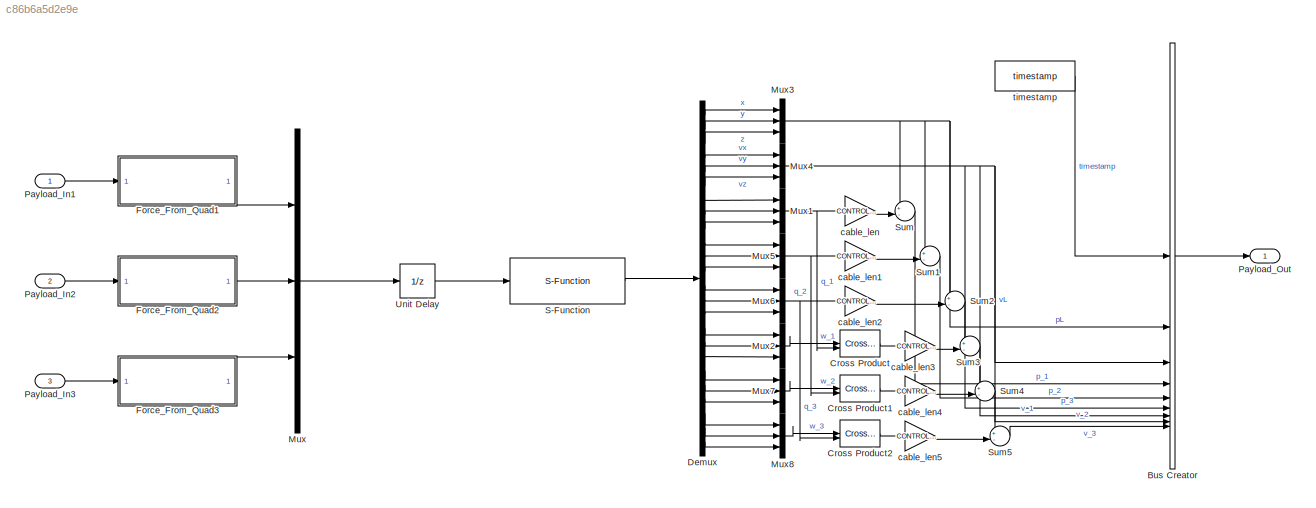
MODEL slx_c86b6a5d2e9e
KIND model
BLOCK [BusCreator] Bus Creator
  DisplayOption = bar
  InheritFromInputs = on
  Inputs = 9
  OutDataTypeStr = Bus: Payload_Out_Bus
BLOCK [Reference] Cross Product  REF=matrix_library/Cross Product
  LibrarySourceBlock = simulink/Matrix\nOperations/Cross Product
  SourceBlock = matrix_library/Cross Product
  SourceType = CrossProduct
BLOCK [Reference] Cross Product1  REF=matrix_library/Cross Product
  LibrarySourceBlock = simulink/Matrix\nOperations/Cross Product
  SourceBlock = matrix_library/Cross Product
  SourceType = CrossProduct
BLOCK [Reference] Cross Product2  REF=matrix_library/Cross Product
  LibrarySourceBlock = simulink/Matrix\nOperations/Cross Product
  SourceBlock = matrix_library/Cross Product
  SourceType = CrossProduct
BLOCK [Demux] Demux
  Outputs = 24
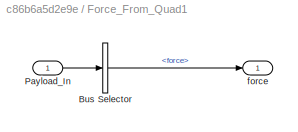
BLOCK [SubSystem] Force_From_Quad1
BLOCK [BusSelector] Force_From_Quad1/Bus Selector
  OutputSignals = force
BLOCK [Inport] Force_From_Quad1/Payload_In
BLOCK [Outport] Force_From_Quad1/force
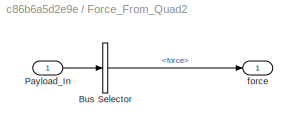
BLOCK [SubSystem] Force_From_Quad2
BLOCK [BusSelector] Force_From_Quad2/Bus Selector
  OutputSignals = force
BLOCK [Inport] Force_From_Quad2/Payload_In
BLOCK [Outport] Force_From_Quad2/force
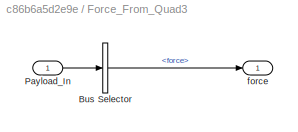
BLOCK [SubSystem] Force_From_Quad3
BLOCK [BusSelector] Force_From_Quad3/Bus Selector
  OutputSignals = force
BLOCK [Inport] Force_From_Quad3/Payload_In
BLOCK [Outport] Force_From_Quad3/force
BLOCK [Mux] Mux
  DisplayOption = bar
  Inputs = 3
BLOCK [Mux] Mux1
  DisplayOption = bar
  Inputs = 3
BLOCK [Mux] Mux2
  DisplayOption = bar
  Inputs = 3
BLOCK [Mux] Mux3
  DisplayOption = bar
  Inputs = 3
BLOCK [Mux] Mux4
  DisplayOption = bar
  Inputs = 3
BLOCK [Mux] Mux5
  DisplayOption = bar
  Inputs = 3
BLOCK [Mux] Mux6
  DisplayOption = bar
  Inputs = 3
BLOCK [Mux] Mux7
  DisplayOption = bar
  Inputs = 3
BLOCK [Mux] Mux8
  DisplayOption = bar
  Inputs = 3
BLOCK [Inport] Payload_In1
  OutDataTypeStr = Bus: Payload_In_Bus
BLOCK [Inport] Payload_In2
  OutDataTypeStr = Bus: Payload_In_Bus
  Port = 2
BLOCK [Inport] Payload_In3
  OutDataTypeStr = Bus: Payload_In_Bus
  Port = 3
BLOCK [Outport] Payload_Out
  OutDataTypeStr = Bus: Payload_Out_Bus
BLOCK [S-Function] S-Function
  EnableBusSupport = off
  FunctionName = payload_3dof_sfunc
  SFcnIsStateOwnerBlock = off
  SFunctionDeploymentMode = off
BLOCK [Sum] Sum
  Inputs = +-|
BLOCK [Sum] Sum1
  Inputs = +-|
BLOCK [Sum] Sum2
  Inputs = +-|
BLOCK [Sum] Sum3
  Inputs = +-|
BLOCK [Sum] Sum4
  Inputs = +-|
BLOCK [Sum] Sum5
  Inputs = +-|
BLOCK [UnitDelay] Unit Delay
  HasFrameUpgradeWarning = on
  SampleTime = -1
BLOCK [Gain] cable_len
  Gain = CONTROL_PARAM.CABLE_LEN
BLOCK [Gain] cable_len1
  Gain = CONTROL_PARAM.CABLE_LEN
BLOCK [Gain] cable_len2
  Gain = CONTROL_PARAM.CABLE_LEN
BLOCK [Gain] cable_len3
  Gain = CONTROL_PARAM.CABLE_LEN
BLOCK [Gain] cable_len4
  Gain = CONTROL_PARAM.CABLE_LEN
BLOCK [Gain] cable_len5
  Gain = CONTROL_PARAM.CABLE_LEN
BLOCK [Reference] timestamp  REF=mqlib/timestamp  (lib defined in slx_e55b6aeabbfa)
  SourceBlock = mqlib/timestamp
LINE Bus Creator:1 -> Payload_Out:1
LINE Cross Product1:1 -> cable_len4:1
LINE Cross Product2:1 -> cable_len5:1
LINE Cross Product:1 -> cable_len3:1
LINE Demux:1 -> Mux3:1
LINE Demux:10 -> Mux5:1
LINE Demux:11 -> Mux5:2
LINE Demux:12 -> Mux5:3
LINE Demux:13 -> Mux6:1
LINE Demux:14 -> Mux6:2
LINE Demux:15 -> Mux6:3
LINE Demux:16 -> Mux2:1
LINE Demux:17 -> Mux2:2
LINE Demux:18 -> Mux2:3
LINE Demux:19 -> Mux7:1
LINE Demux:2 -> Mux3:2
LINE Demux:20 -> Mux7:2
LINE Demux:21 -> Mux7:3
LINE Demux:22 -> Mux8:1
LINE Demux:23 -> Mux8:2
LINE Demux:24 -> Mux8:3
LINE Demux:3 -> Mux3:3
LINE Demux:4 -> Mux4:1
LINE Demux:5 -> Mux4:2
LINE Demux:6 -> Mux4:3
LINE Demux:7 -> Mux1:1
LINE Demux:8 -> Mux1:2
LINE Demux:9 -> Mux1:3
LINE Force_From_Quad1/Bus Selector:1 -> Force_From_Quad1/force:1
LINE Force_From_Quad1/Payload_In:1 -> Force_From_Quad1/Bus Selector:1
LINE Force_From_Quad1:1 -> Mux:1
LINE Force_From_Quad2/Bus Selector:1 -> Force_From_Quad2/force:1
LINE Force_From_Quad2/Payload_In:1 -> Force_From_Quad2/Bus Selector:1
LINE Force_From_Quad2:1 -> Mux:2
LINE Force_From_Quad3/Bus Selector:1 -> Force_From_Quad3/force:1
LINE Force_From_Quad3/Payload_In:1 -> Force_From_Quad3/Bus Selector:1
LINE Force_From_Quad3:1 -> Mux:3
NET Mux1:1 -> Cross Product:2, cable_len:1
LINE Mux2:1 -> Cross Product:1
NET Mux3:1 -> Bus Creator:2, Sum1:1, Sum2:1, Sum:1
NET Mux4:1 -> Bus Creator:3, Sum3:1, Sum4:1, Sum5:1
NET Mux5:1 -> Cross Product1:2, cable_len1:1
NET Mux6:1 -> Cross Product2:2, cable_len2:1
LINE Mux7:1 -> Cross Product1:1
LINE Mux8:1 -> Cross Product2:1
LINE Mux:1 -> Unit Delay:1
LINE Payload_In1:1 -> Force_From_Quad1:1
LINE Payload_In2:1 -> Force_From_Quad2:1
LINE Payload_In3:1 -> Force_From_Quad3:1
LINE S-Function:1 -> Demux:1
LINE Sum1:1 -> Bus Creator:5
LINE Sum2:1 -> Bus Creator:6
LINE Sum3:1 -> Bus Creator:7
LINE Sum4:1 -> Bus Creator:8
LINE Sum5:1 -> Bus Creator:9
LINE Sum:1 -> Bus Creator:4
LINE Unit Delay:1 -> S-Function:1
LINE cable_len1:1 -> Sum1:2
LINE cable_len2:1 -> Sum2:2
LINE cable_len3:1 -> Sum3:2
LINE cable_len4:1 -> Sum4:2
LINE cable_len5:1 -> Sum5:2
LINE cable_len:1 -> Sum:2
LINE timestamp:1 -> Bus Creator:1
note: NET lines group one-source signal fan-out (src -> all destinations, sorted); 1:1 wires keep LINE
